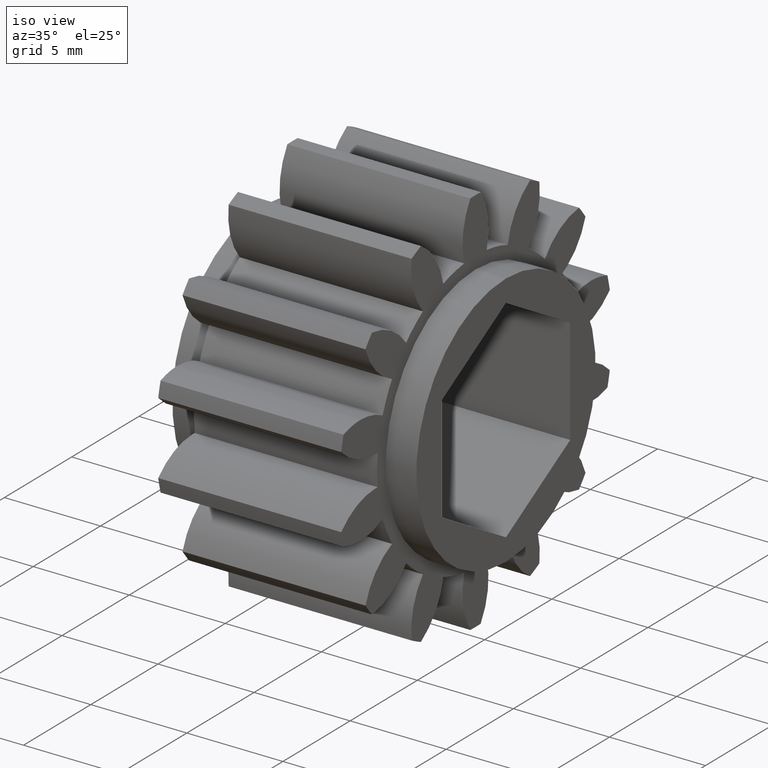
[diagram: clean part render]
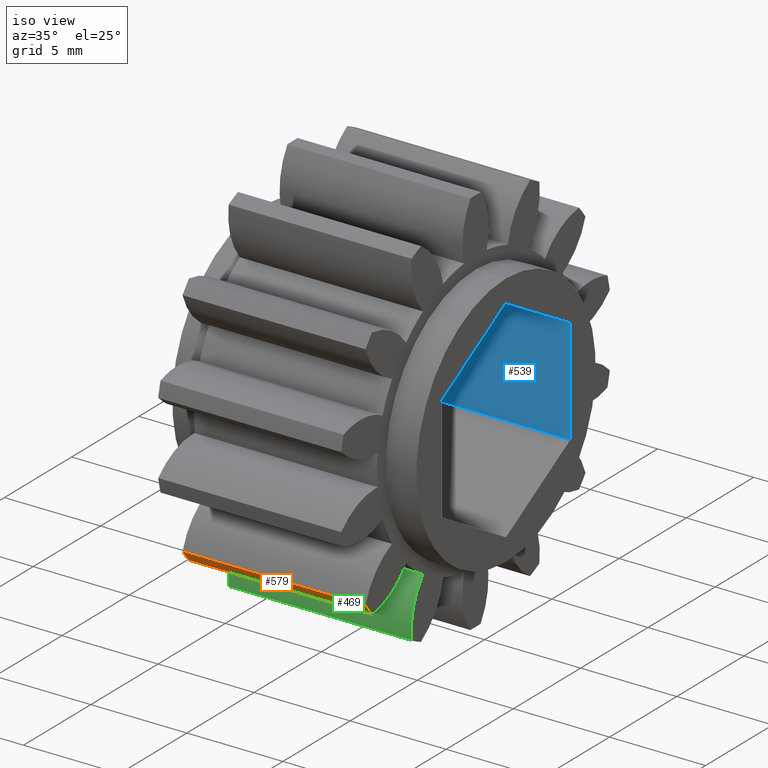
[diagram: same view with three faces highlighted in distinct colors, each labeled with its STEP entity id]
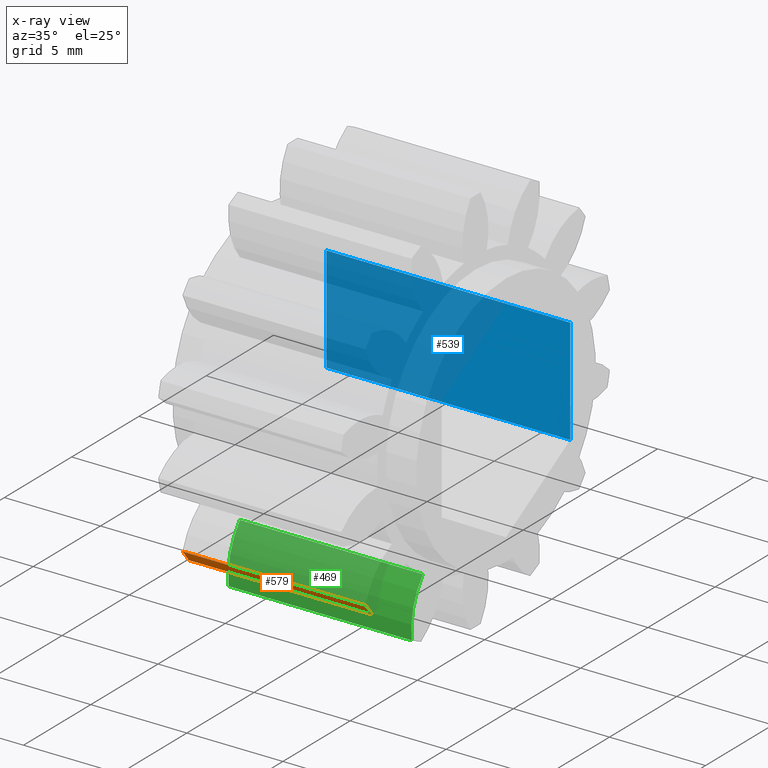
[diagram: x-ray of the same camera — body ghosted, the three highlighted faces saturated]
A machine part, iso view with three faces highlighted in distinct colors.
The next image is the same camera in x-ray (body ghosted, the three faces saturated) — at least one of them is partly hidden behind the body in this view.
Their STEP definitions:

[orange] entity #579 — the highlighted cylindrical surface (partial cylindrical patch) has radius 10.16 mm, axis along (-1, -0, -0).
#12 = CYLINDRICAL_SURFACE ( 'NONE', #1244, 0.4000000000000000800 ) ;
#48 = FACE_OUTER_BOUND ( 'NONE', #2247, .T. ) ;
#151 = CARTESIAN_POINT ( 'NONE',  ( 0.3750000000000000600, -0.3219464758552528200, -0.2373825323910402100 ) ) ;
#156 = CARTESIAN_POINT ( 'NONE',  ( 0.3750000000000000600, -0.3030706871836814600, -0.2610520227272931600 ) ) ;
#382 = CARTESIAN_POINT ( 'NONE',  ( 0.2839999999999999700, -0.3030706871836814600, -0.2610520227272931600 ) ) ;
#423 = ORIENTED_EDGE ( 'NONE', *, *, #2308, .F. ) ;
#437 = ORIENTED_EDGE ( 'NONE', *, *, #1013, .T. ) ;
#442 = ORIENTED_EDGE ( 'NONE', *, *, #2548, .F. ) ;
#450 = ORIENTED_EDGE ( 'NONE', *, *, #2124, .F. ) ;
#579 = ADVANCED_FACE ( 'NONE', ( #48 ), #12, .T. ) ;
#587 = AXIS2_PLACEMENT_3D ( 'NONE', #1809, #1797, #1784 ) ;
#771 = VERTEX_POINT ( 'NONE', #1795 ) ;
#903 = DIRECTION ( 'NONE',  ( 1.000000000000000000, 0.0000000000000000000, -0.0000000000000000000 ) ) ;
#953 = VERTEX_POINT ( 'NONE', #1476 ) ;
#997 = AXIS2_PLACEMENT_3D ( 'NONE', #1288, #1277, #1274 ) ;
#1013 = EDGE_CURVE ( 'NONE', #1711, #1708, #2510, .T. ) ;
#1077 = DIRECTION ( 'NONE',  ( -1.000000000000000000, -0.0000000000000000000, 0.0000000000000000000 ) ) ;
#1173 = VECTOR ( 'NONE', #903, 39.37007874015748100 ) ;
#1179 = LINE ( 'NONE', #2024, #1173 ) ;
#1244 = AXIS2_PLACEMENT_3D ( 'NONE', #2419, #2409, #2504 ) ;
#1274 = DIRECTION ( 'NONE',  ( 0.0000000000000000000, 0.0000000000000000000, 1.000000000000000000 ) ) ;
#1277 = DIRECTION ( 'NONE',  ( -1.000000000000000000, 0.0000000000000000000, 0.0000000000000000000 ) ) ;
#1288 = CARTESIAN_POINT ( 'NONE',  ( 0.3750000000000000600, 0.0000000000000000000, 0.0000000000000000000 ) ) ;
#1476 = CARTESIAN_POINT ( 'NONE',  ( 0.0000000000000000000, -0.3030706871836814600, -0.2610520227272931600 ) ) ;
#1565 = VECTOR ( 'NONE', #1077, 39.37007874015748100 ) ;
#1569 = LINE ( 'NONE', #382, #1565 ) ;
#1708 = VERTEX_POINT ( 'NONE', #151 ) ;
#1711 = VERTEX_POINT ( 'NONE', #156 ) ;
#1784 = DIRECTION ( 'NONE',  ( 0.0000000000000000000, 0.0000000000000000000, 1.000000000000000000 ) ) ;
#1795 = CARTESIAN_POINT ( 'NONE',  ( 0.0000000000000000000, -0.3219464758552527700, -0.2373825323910401800 ) ) ;
#1797 = DIRECTION ( 'NONE',  ( -1.000000000000000000, -0.0000000000000000000, -0.0000000000000000000 ) ) ;
#1809 = CARTESIAN_POINT ( 'NONE',  ( 0.0000000000000000000, 0.0000000000000000000, 0.0000000000000000000 ) ) ;
#2024 = CARTESIAN_POINT ( 'NONE',  ( 0.2839999999999999700, -0.3219464758552527700, -0.2373825323910401800 ) ) ;
#2027 = CIRCLE ( 'NONE', #587, 0.4000000000000000800 ) ;
#2124 = EDGE_CURVE ( 'NONE', #953, #771, #2027, .T. ) ;
#2247 = EDGE_LOOP ( 'NONE', ( #423, #437, #442, #450 ) ) ;
#2308 = EDGE_CURVE ( 'NONE', #1711, #953, #1569, .T. ) ;
#2409 = DIRECTION ( 'NONE',  ( -1.000000000000000000, -0.0000000000000000000, -0.0000000000000000000 ) ) ;
#2419 = CARTESIAN_POINT ( 'NONE',  ( -0.3937007874015748300, 0.0000000000000000000, 0.0000000000000000000 ) ) ;
#2504 = DIRECTION ( 'NONE',  ( 0.0000000000000000000, 0.0000000000000000000, 1.000000000000000000 ) ) ;
#2510 = CIRCLE ( 'NONE', #997, 0.4000000000000000800 ) ;
#2548 = EDGE_CURVE ( 'NONE', #771, #1708, #1179, .T. ) ;

[blue] entity #539 — the highlighted planar face has unit normal (0, 1, -0).
#89 = DIRECTION ( 'NONE',  ( 0.0000000000000000000, 0.0000000000000000000, 1.000000000000000000 ) ) ;
#94 = DIRECTION ( 'NONE',  ( 0.0000000000000000000, 1.000000000000000000, -0.0000000000000000000 ) ) ;
#115 = PLANE ( 'NONE',  #1375 ) ;
#118 = DIRECTION ( 'NONE',  ( 0.0000000000000000000, 0.0000000000000000000, 1.000000000000000000 ) ) ;
#129 = CARTESIAN_POINT ( 'NONE',  ( 0.4375000000000000600, 0.1880000000000000600, -0.1085418506076495600 ) ) ;
#136 = CARTESIAN_POINT ( 'NONE',  ( -0.06250000000000001400, 0.1880000000000000600, -0.1085418506076495600 ) ) ;
#142 = FACE_OUTER_BOUND ( 'NONE', #2249, .T. ) ;
#539 = ADVANCED_FACE ( 'NONE', ( #142 ), #115, .F. ) ;
#564 = ORIENTED_EDGE ( 'NONE', *, *, #2151, .F. ) ;
#601 = ORIENTED_EDGE ( 'NONE', *, *, #2235, .F. ) ;
#775 = CARTESIAN_POINT ( 'NONE',  ( -0.06250000000000001400, 0.1880000000000000600, -0.1085418506076495600 ) ) ;
#881 = VERTEX_POINT ( 'NONE', #1672 ) ;
#890 = CARTESIAN_POINT ( 'NONE',  ( -0.06250000000000001400, 0.1880000000000000600, 0.1085418506076496800 ) ) ;
#992 = CARTESIAN_POINT ( 'NONE',  ( -0.06250000000000000000, 0.1880000000000000300, -0.1085418506076496100 ) ) ;
#1143 = DIRECTION ( 'NONE',  ( 1.000000000000000000, -0.0000000000000000000, -0.0000000000000000000 ) ) ;
#1156 = CARTESIAN_POINT ( 'NONE',  ( -0.06250000000000001400, 0.1880000000000000600, 0.1085418506076496800 ) ) ;
#1375 = AXIS2_PLACEMENT_3D ( 'NONE', #136, #94, #89 ) ;
#1506 = CARTESIAN_POINT ( 'NONE',  ( -0.06250000000000001400, 0.1880000000000000600, -0.1085418506076495600 ) ) ;
#1524 = VECTOR ( 'NONE', #2446, 39.37007874015748100 ) ;
#1559 = LINE ( 'NONE', #775, #1524 ) ;
#1672 = CARTESIAN_POINT ( 'NONE',  ( 0.4375000000000000600, 0.1880000000000000600, 0.1085418506076496800 ) ) ;
#1730 = EDGE_CURVE ( 'NONE', #2346, #881, #2119, .T. ) ;
#1759 = VECTOR ( 'NONE', #2142, 39.37007874015748100 ) ;
#1807 = LINE ( 'NONE', #1506, #1759 ) ;
#1920 = VECTOR ( 'NONE', #1143, 39.37007874015748100 ) ;
#1934 = LINE ( 'NONE', #1156, #1920 ) ;
#1977 = VERTEX_POINT ( 'NONE', #992 ) ;
#2119 = LINE ( 'NONE', #129, #2133 ) ;
#2133 = VECTOR ( 'NONE', #118, 39.37007874015748100 ) ;
#2141 = ORIENTED_EDGE ( 'NONE', *, *, #1730, .T. ) ;
#2142 = DIRECTION ( 'NONE',  ( 0.0000000000000000000, 0.0000000000000000000, 1.000000000000000000 ) ) ;
#2151 = EDGE_CURVE ( 'NONE', #2342, #881, #1934, .T. ) ;
#2235 = EDGE_CURVE ( 'NONE', #1977, #2342, #1807, .T. ) ;
#2249 = EDGE_LOOP ( 'NONE', ( #2141, #564, #601, #2323 ) ) ;
#2323 = ORIENTED_EDGE ( 'NONE', *, *, #2330, .T. ) ;
#2330 = EDGE_CURVE ( 'NONE', #1977, #2346, #1559, .T. ) ;
#2342 = VERTEX_POINT ( 'NONE', #890 ) ;
#2346 = VERTEX_POINT ( 'NONE', #2575 ) ;
#2446 = DIRECTION ( 'NONE',  ( 1.000000000000000000, -0.0000000000000000000, -0.0000000000000000000 ) ) ;
#2575 = CARTESIAN_POINT ( 'NONE',  ( 0.4375000000000000600, 0.1880000000000000600, -0.1085418506076495600 ) ) ;

[green] entity #469 — the highlighted cylindrical surface (partial cylindrical patch) has radius 3.556 mm, axis along (-1, -0, 0).
#143 = CARTESIAN_POINT ( 'NONE',  ( 0.0000000000000000000, -0.1538394207783309300, -0.2434695722561398000 ) ) ;
#145 = EDGE_CURVE ( 'NONE', #405, #1717, #1060, .T. ) ;
#170 = CARTESIAN_POINT ( 'NONE',  ( 0.2839999999999999700, -0.1870673311214609600, -0.3535616122079625600 ) ) ;
#174 = DIRECTION ( 'NONE',  ( 1.000000000000000000, 0.0000000000000000000, -0.0000000000000000000 ) ) ;
#301 = CYLINDRICAL_SURFACE ( 'NONE', #1518, 0.1400000000000000400 ) ;
#307 = FACE_OUTER_BOUND ( 'NONE', #2089, .T. ) ;
#405 = VERTEX_POINT ( 'NONE', #1129 ) ;
#469 = ADVANCED_FACE ( 'NONE', ( #307 ), #301, .T. ) ;
#618 = DIRECTION ( 'NONE',  ( -1.000000000000000000, -0.0000000000000000000, 0.0000000000000000000 ) ) ;
#640 = CARTESIAN_POINT ( 'NONE',  ( 0.5679999999999999500, -0.04825050301642689500, -0.3353987865781923900 ) ) ;
#655 = CARTESIAN_POINT ( 'NONE',  ( 0.3750000000000000600, -0.1870673311214609800, -0.3535616122079626700 ) ) ;
#660 = DIRECTION ( 'NONE',  ( 0.0000000000000000000, 0.0000000000000000000, 1.000000000000000000 ) ) ;
#919 = EDGE_CURVE ( 'NONE', #1717, #2546, #2547, .T. ) ;
#927 = EDGE_CURVE ( 'NONE', #405, #1401, #2538, .T. ) ;
#1030 = AXIS2_PLACEMENT_3D ( 'NONE', #1511, #1507, #1491 ) ;
#1035 = AXIS2_PLACEMENT_3D ( 'NONE', #1545, #1542, #1536 ) ;
#1043 = VECTOR ( 'NONE', #1886, 39.37007874015748100 ) ;
#1060 = LINE ( 'NONE', #1937, #1043 ) ;
#1087 = CARTESIAN_POINT ( 'NONE',  ( 0.0000000000000000000, -0.1870673311214609600, -0.3535616122079625600 ) ) ;
#1129 = CARTESIAN_POINT ( 'NONE',  ( 0.3750000000000000600, -0.1538394207783309300, -0.2434695722561398300 ) ) ;
#1200 = ORIENTED_EDGE ( 'NONE', *, *, #145, .T. ) ;
#1401 = VERTEX_POINT ( 'NONE', #655 ) ;
#1491 = DIRECTION ( 'NONE',  ( 0.0000000000000000000, 9.146812478786592300E-016, 1.000000000000000000 ) ) ;
#1495 = ORIENTED_EDGE ( 'NONE', *, *, #1700, .T. ) ;
#1507 = DIRECTION ( 'NONE',  ( 1.000000000000000000, -0.0000000000000000000, -0.0000000000000000000 ) ) ;
#1511 = CARTESIAN_POINT ( 'NONE',  ( 0.3750000000000000600, -0.04825050301642689500, -0.3353987865781923900 ) ) ;
#1518 = AXIS2_PLACEMENT_3D ( 'NONE', #640, #618, #660 ) ;
#1536 = DIRECTION ( 'NONE',  ( 0.0000000000000000000, 0.0000000000000000000, -1.000000000000000000 ) ) ;
#1542 = DIRECTION ( 'NONE',  ( 1.000000000000000000, 0.0000000000000000000, 0.0000000000000000000 ) ) ;
#1545 = CARTESIAN_POINT ( 'NONE',  ( 0.0000000000000000000, -0.04825050301642689500, -0.3353987865781923900 ) ) ;
#1576 = ORIENTED_EDGE ( 'NONE', *, *, #919, .T. ) ;
#1700 = EDGE_CURVE ( 'NONE', #2546, #1401, #2113, .T. ) ;
#1717 = VERTEX_POINT ( 'NONE', #143 ) ;
#1886 = DIRECTION ( 'NONE',  ( -1.000000000000000000, -0.0000000000000000000, 0.0000000000000000000 ) ) ;
#1937 = CARTESIAN_POINT ( 'NONE',  ( 0.5679999999999999500, -0.1538394207783309300, -0.2434695722561398000 ) ) ;
#2089 = EDGE_LOOP ( 'NONE', ( #2289, #1200, #1576, #1495 ) ) ;
#2112 = VECTOR ( 'NONE', #174, 39.37007874015748100 ) ;
#2113 = LINE ( 'NONE', #170, #2112 ) ;
#2289 = ORIENTED_EDGE ( 'NONE', *, *, #927, .F. ) ;
#2538 = CIRCLE ( 'NONE', #1030, 0.1400000000000000400 ) ;
#2546 = VERTEX_POINT ( 'NONE', #1087 ) ;
#2547 = CIRCLE ( 'NONE', #1035, 0.1400000000000000100 ) ;